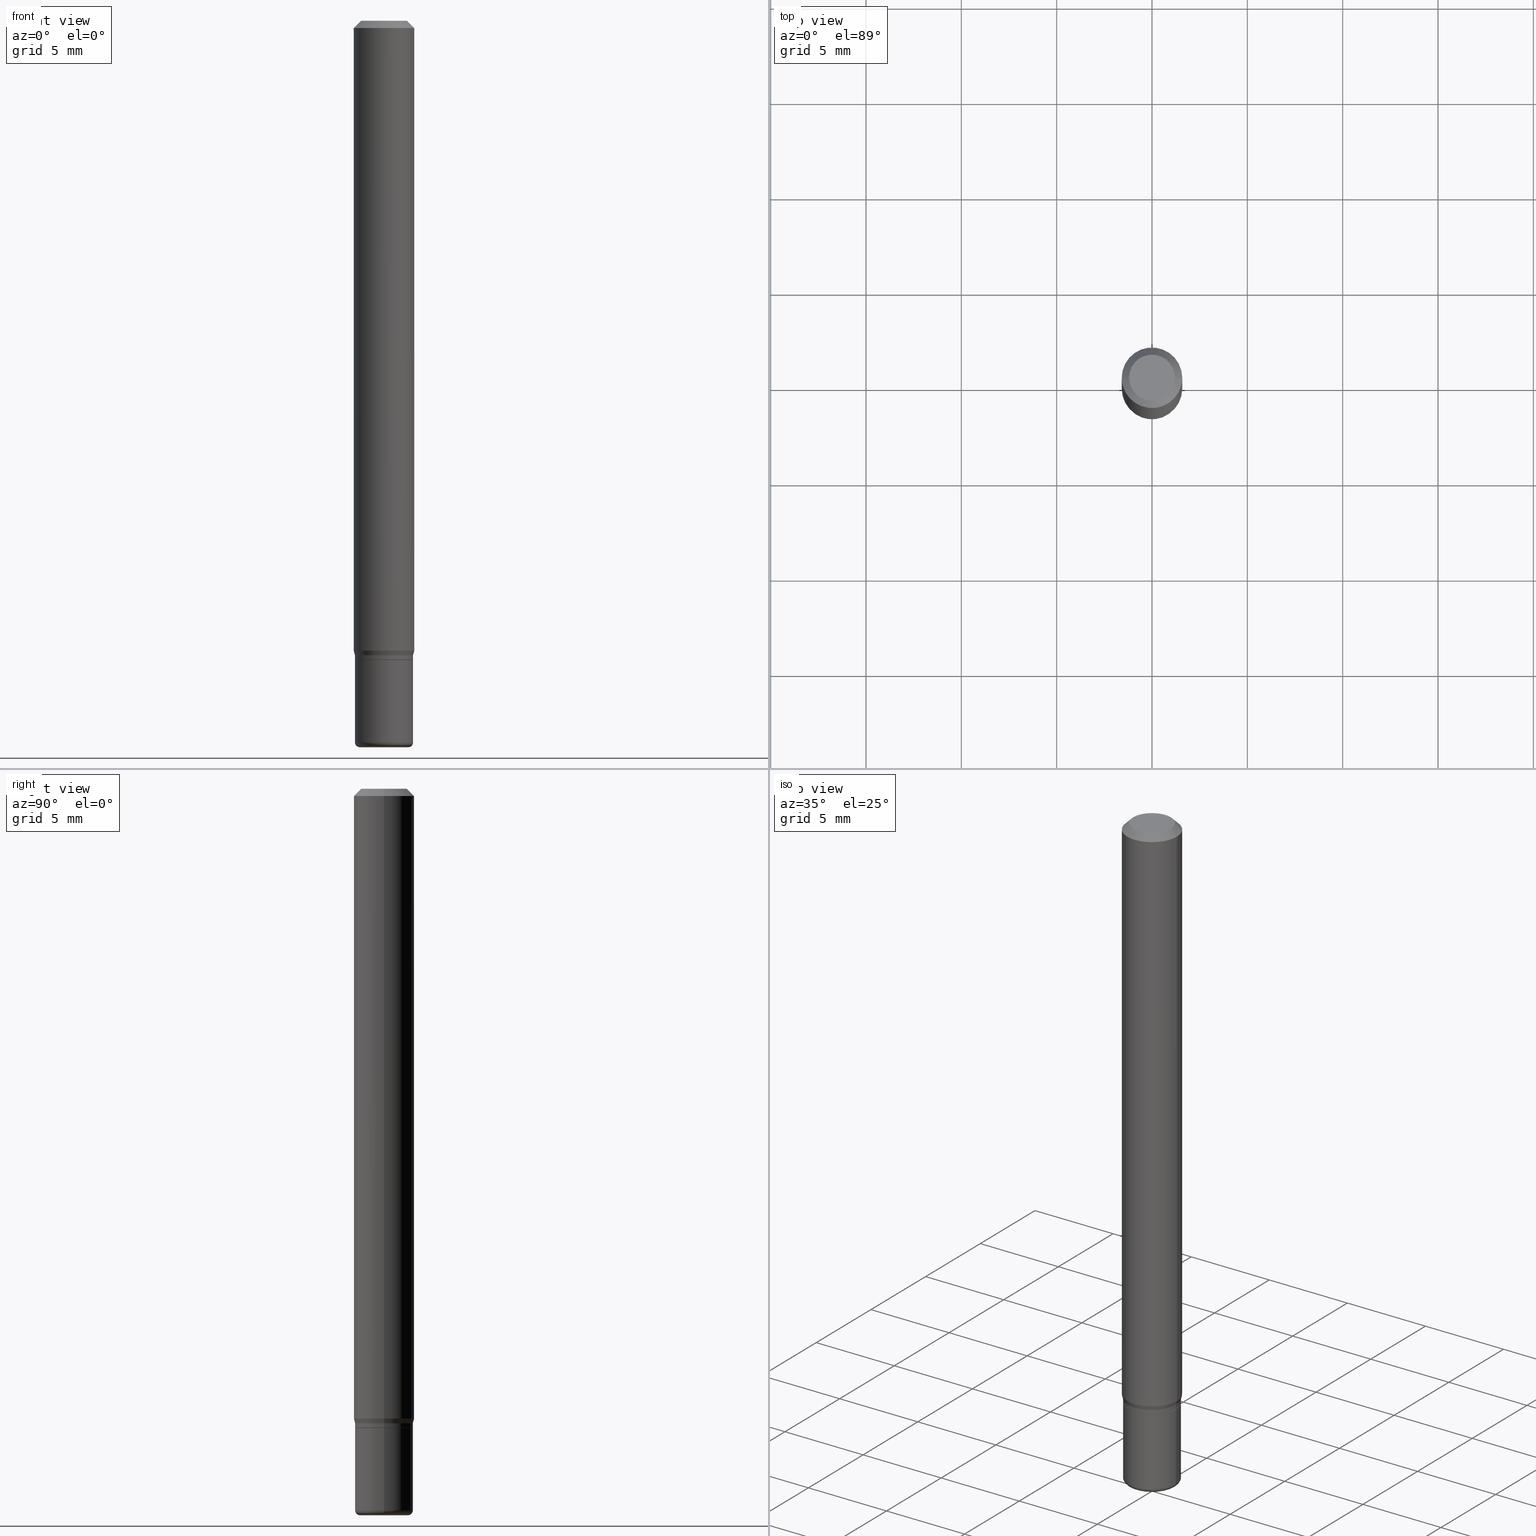
[diagram: canonical four-view strip — front | top / right | iso, engineering-drawing reading convention]
A machine part, canonical four-view strip (front | top / right | iso — engineering-drawing reading convention). The complete STEP part file that produces these views, byte-faithful:
ISO-10303-21;
HEADER;
FILE_DESCRIPTION (( 'STEP AP203' ),
    '1' );
FILE_NAME ('08633.STEP',
    '2024-02-29T20:05:15',
    ( '' ),
    ( '' ),
    'SwSTEP 2.0',
    'SolidWorks 2023',
    '' );
FILE_SCHEMA (( 'CONFIG_CONTROL_DESIGN' ));
ENDSEC;

DATA;
#1 = EDGE_CURVE ( 'NONE', #241, #350, #5, .T. ) ;
#2 = LINE ( 'NONE', #336, #425 ) ;
#3 = ORIENTED_EDGE ( 'NONE', *, *, #418, .F. ) ;
#4 = CARTESIAN_POINT ( 'NONE',  ( -0.05949999999999997652, -4.185982439495692846E-15, -1.320000000000000062 ) ) ;
#5 = LINE ( 'NONE', #329, #110 ) ;
#6 = DIRECTION ( 'NONE',  ( -2.445468806185136877E-29, 3.491481338843145188E-15, 1.000000000000000000 ) ) ;
#7 = CONICAL_SURFACE ( 'NONE', #157, 0.06250000000000000000, 0.7853981633974488341 ) ;
#8 = ADVANCED_FACE ( 'NONE', ( #10 ), #166, .T. ) ;
#9 = AXIS2_PLACEMENT_3D ( 'NONE', #221, #65, #228 ) ;
#10 = FACE_OUTER_BOUND ( 'NONE', #127, .T. ) ;
#11 = COORDINATED_UNIVERSAL_TIME_OFFSET ( 5, 0, .BEHIND. ) ;
#12 = DIRECTION ( 'NONE',  ( 1.000000000000000000, -6.982962677686265922E-15, 4.876176775795935793E-29 ) ) ;
#13 = ORIENTED_EDGE ( 'NONE', *, *, #207, .F. ) ;
#14 = PRODUCT_RELATED_PRODUCT_CATEGORY ( 'detail', '', ( #305 ) ) ;
#15 = DIRECTION ( 'NONE',  ( -2.445468806185136877E-29, 3.491481338843145188E-15, 1.000000000000000000 ) ) ;
#16 = DIRECTION ( 'NONE',  ( 1.000000000000000000, -6.982962677686262766E-15, 0.000000000000000000 ) ) ;
#17 = CYLINDRICAL_SURFACE ( 'NONE', #38, 0.05999999999999998390 ) ;
#18 = AXIS2_PLACEMENT_3D ( 'NONE', #459, #342, #148 ) ;
#19 = CARTESIAN_POINT ( 'NONE',  ( 0.000000000000000000, 0.000000000000000000, 0.000000000000000000 ) ) ;
#20 = AXIS2_PLACEMENT_3D ( 'NONE', #375, #414, #343 ) ;
#21 = CARTESIAN_POINT ( 'NONE',  ( 0.000000000000000000, 0.000000000000000000, 0.000000000000000000 ) ) ;
#22 = CARTESIAN_POINT ( 'NONE',  ( 3.180747601520009606E-29, -4.541264589508918231E-15, -1.300669872981077946 ) ) ;
#23 = PERSON_AND_ORGANIZATION ( #239, #264 ) ;
#24 = CARTESIAN_POINT ( 'NONE',  ( 0.04999999999999999584, -5.551455328760601441E-15, -1.490000000000000213 ) ) ;
#25 = DIRECTION ( 'NONE',  ( 1.000000000000000000, -6.982962677686275388E-15, 0.000000000000000000 ) ) ;
#26 = CARTESIAN_POINT ( 'NONE',  ( -0.06250000000000000000, -4.097175379658855615E-15, -1.300669872981077946 ) ) ;
#27 = PERSON_AND_ORGANIZATION ( #239, #264 ) ;
#28 = CLOSED_SHELL ( 'NONE', ( #310, #8, #60, #290, #252, #40, #267, #318, #90, #172, #50, #35 ) ) ;
#29 = DIRECTION ( 'NONE',  ( 1.000000000000000000, -6.982962677686269077E-15, 0.000000000000000000 ) ) ;
#30 = EDGE_CURVE ( 'NONE', #394, #158, #232, .T. ) ;
#31 = EDGE_LOOP ( 'NONE', ( #254, #488, #483, #409 ) ) ;
#32 = APPROVAL ( #88, 'UNSPECIFIED' ) ;
#33 = CARTESIAN_POINT ( 'NONE',  ( -0.05949999999999997652, -4.183333212321581645E-15, -1.320000000000000062 ) ) ;
#34 = ORIENTED_EDGE ( 'NONE', *, *, #69, .F. ) ;
#35 = ADVANCED_FACE ( 'NONE', ( #174 ), #502, .T. ) ;
#36 = APPROVAL_DATE_TIME ( #389, #429 ) ;
#37 = EDGE_LOOP ( 'NONE', ( #506, #132, #125, #234 ) ) ;
#38 = AXIS2_PLACEMENT_3D ( 'NONE', #21, #108, #178 ) ;
#39 = DATE_TIME_ROLE ( 'creation_date' ) ;
#40 = ADVANCED_FACE ( 'NONE', ( #146 ), #370, .T. ) ;
#41 = SECURITY_CLASSIFICATION_LEVEL ( 'unclassified' ) ;
#42 = EDGE_LOOP ( 'NONE', ( #168, #399, #278, #209 ) ) ;
#43 = LENGTH_MEASURE_WITH_UNIT ( LENGTH_MEASURE( 0.02539999999999999897 ), #357 );
#44 = ORIENTED_EDGE ( 'NONE', *, *, #255, .T. ) ;
#45 = CIRCLE ( 'NONE', #18, 0.05949999999999997652 ) ;
#46 = VECTOR ( 'NONE', #484, 39.37007874015748143 ) ;
#47 = ORIENTED_EDGE ( 'NONE', *, *, #405, .F. ) ;
#48 = LINE ( 'NONE', #4, #46 ) ;
#49 = ORIENTED_EDGE ( 'NONE', *, *, #86, .T. ) ;
#50 = ADVANCED_FACE ( 'NONE', ( #179 ), #308, .T. ) ;
#51 = CARTESIAN_POINT ( 'NONE',  ( 3.643748521215853910E-29, -5.202307194876288105E-15, -1.490000000000000213 ) ) ;
#52 = ORIENTED_EDGE ( 'NONE', *, *, #189, .T. ) ;
#53 = DIRECTION ( 'NONE',  ( -2.445468806185136597E-29, 3.491481338843145583E-15, 1.000000000000000000 ) ) ;
#54 = CC_DESIGN_PERSON_AND_ORGANIZATION_ASSIGNMENT ( #82, #152, ( #101 ) ) ;
#55 = VERTEX_POINT ( 'NONE', #382 ) ;
#56 = DIRECTION ( 'NONE',  ( -2.438088387897960049E-29, 3.491481338843145188E-15, 1.000000000000000000 ) ) ;
#57 = CARTESIAN_POINT ( 'NONE',  ( 3.668203209277632395E-31, -5.237222008264614861E-17, -0.01499999999999970281 ) ) ;
#58 = DIRECTION ( 'NONE',  ( -2.445468806185136877E-29, 3.491481338843145188E-15, 1.000000000000000000 ) ) ;
#59 = FACE_OUTER_BOUND ( 'NONE', #242, .T. ) ;
#60 = ADVANCED_FACE ( 'NONE', ( #59 ), #297, .T. ) ;
#61 = DIRECTION ( 'NONE',  ( 1.000000000000000000, -6.982962677686275388E-15, 0.000000000000000000 ) ) ;
#62 = VECTOR ( 'NONE', #133, 39.37007874015748143 ) ;
#63 = FACE_OUTER_BOUND ( 'NONE', #197, .T. ) ;
#64 = CARTESIAN_POINT ( 'NONE',  ( 0.000000000000000000, 0.000000000000000000, 0.000000000000000000 ) ) ;
#65 = DIRECTION ( 'NONE',  ( -2.445468806185136597E-29, 3.491481338843145583E-15, 1.000000000000000000 ) ) ;
#66 = DIMENSIONAL_EXPONENTS ( 1.000000000000000000, 0.000000000000000000, 0.000000000000000000, 0.000000000000000000, 0.000000000000000000, 0.000000000000000000, 0.000000000000000000 ) ;
#67 = CARTESIAN_POINT ( 'NONE',  ( -0.05999999999999997696, 4.263256414560599478E-16, -2.951361054152942362E-30 ) ) ;
#68 = CARTESIAN_POINT ( 'NONE',  ( 0.06250000000000000000, -4.888073874380378612E-16, -0.01499999999999970281 ) ) ;
#69 = EDGE_CURVE ( 'NONE', #477, #469, #319, .T. ) ;
#70 = AXIS2_PLACEMENT_3D ( 'NONE', #307, #112, #61 ) ;
#71 = LOCAL_TIME ( 15, 5, 15.00000000000000000, #275 ) ;
#72 = ORIENTED_EDGE ( 'NONE', *, *, #222, .T. ) ;
#73 = CIRCLE ( 'NONE', #361, 0.04999999999999999584 ) ;
#74 = CIRCLE ( 'NONE', #515, 0.05949999999999997652 ) ;
#75 = DIRECTION ( 'NONE',  ( -1.000000000000000000, 7.105427357600958471E-15, 0.000000000000000000 ) ) ;
#76 = EDGE_CURVE ( 'NONE', #332, #445, #279, .T. ) ;
#77 = ORIENTED_EDGE ( 'NONE', *, *, #126, .T. ) ;
#78 = APPROVAL_ROLE ( '' ) ;
#79 = ORIENTED_EDGE ( 'NONE', *, *, #222, .F. ) ;
#80 = DIRECTION ( 'NONE',  ( 1.000000000000000000, -6.982962677686273810E-15, 4.883557194083115143E-29 ) ) ;
#81 = EDGE_LOOP ( 'NONE', ( #156, #407, #369, #79 ) ) ;
#82 = PERSON_AND_ORGANIZATION ( #239, #264 ) ;
#83 = APPLICATION_PROTOCOL_DEFINITION ( 'international standard', 'config_control_design', 1994, #218 ) ;
#84 = AXIS2_PLACEMENT_3D ( 'NONE', #373, #141, #135 ) ;
#85 = DIRECTION ( 'NONE',  ( -1.000000000000000000, 6.982962677686265922E-15, -4.876176775795935793E-29 ) ) ;
#86 = EDGE_CURVE ( 'NONE', #476, #87, #73, .T. ) ;
#87 = VERTEX_POINT ( 'NONE', #455 ) ;
#88 = APPROVAL_STATUS ( 'not_yet_approved' ) ;
#89 = CARTESIAN_POINT ( 'NONE',  ( -6.680649051745406845E-45, 9.538196290434862081E-31, 2.731847993664263218E-16 ) ) ;
#90 = ADVANCED_FACE ( 'NONE', ( #63 ), #107, .F. ) ;
#91 = ORIENTED_EDGE ( 'NONE', *, *, #384, .T. ) ;
#92 = CIRCLE ( 'NONE', #175, 0.05999999999999997696 ) ;
#93 = CYLINDRICAL_SURFACE ( 'NONE', #193, 0.06250000000000000000 ) ;
#94 = AXIS2_PLACEMENT_3D ( 'NONE', #51, #411, #215 ) ;
#95 = EDGE_LOOP ( 'NONE', ( #355, #440, #34, #100 ) ) ;
#96 = CARTESIAN_POINT ( 'NONE',  ( 0.000000000000000000, 0.000000000000000000, 0.000000000000000000 ) ) ;
#97 = DIRECTION ( 'NONE',  ( -2.445468806185136877E-29, 3.491481338843145188E-15, 1.000000000000000000 ) ) ;
#98 = ADVANCED_FACE ( 'NONE', ( #261 ), #427, .T. ) ;
#99 = DIRECTION ( 'NONE',  ( -2.438088387897960049E-29, 3.491481338843145188E-15, 1.000000000000000000 ) ) ;
#100 = ORIENTED_EDGE ( 'NONE', *, *, #126, .F. ) ;
#101 = PRODUCT_DEFINITION_FORMATION_WITH_SPECIFIED_SOURCE ( 'ANY', '', #305, .NOT_KNOWN. ) ;
#102 = DIRECTION ( 'NONE',  ( 1.000000000000000000, -6.982962677686269077E-15, 0.000000000000000000 ) ) ;
#103 = DIRECTION ( 'NONE',  ( 1.000000000000000000, -6.982962677686266711E-15, 0.000000000000000000 ) ) ;
#104 = ADVANCED_FACE ( 'NONE', ( #259 ), #379, .T. ) ;
#105 = DIRECTION ( 'NONE',  ( 2.438088387897960049E-29, -3.491481338843145188E-15, -1.000000000000000000 ) ) ;
#106 = DIRECTION ( 'NONE',  ( 1.000000000000000000, -6.982962677686270655E-15, 0.000000000000000000 ) ) ;
#107 = PLANE ( 'NONE',  #138 ) ;
#108 = DIRECTION ( 'NONE',  ( -2.445468806185136597E-29, 3.491481338843145583E-15, 1.000000000000000000 ) ) ;
#109 = FACE_OUTER_BOUND ( 'NONE', #117, .T. ) ;
#110 = VECTOR ( 'NONE', #97, 39.37007874015748143 ) ;
#111 = EDGE_CURVE ( 'NONE', #201, #241, #494, .T. ) ;
#112 = DIRECTION ( 'NONE',  ( -2.445468806185136597E-29, 3.491481338843145583E-15, 1.000000000000000000 ) ) ;
#113 = APPROVAL ( #312, 'UNSPECIFIED' ) ;
#114 = DIRECTION ( 'NONE',  ( -2.445468806185136597E-29, 3.491481338843145583E-15, 1.000000000000000000 ) ) ;
#115 = CARTESIAN_POINT ( 'NONE',  ( -0.04999999999999999584, -4.847035826996237697E-15, -1.490000000000000213 ) ) ;
#116 = AXIS2_PLACEMENT_3D ( 'NONE', #374, #140, #381 ) ;
#117 = EDGE_LOOP ( 'NONE', ( #251, #327 ) ) ;
#118 = AXIS2_PLACEMENT_3D ( 'NONE', #470, #387, #85 ) ;
#119 = PERSON_AND_ORGANIZATION ( #239, #264 ) ;
#120 = ORIENTED_EDGE ( 'NONE', *, *, #69, .T. ) ;
#121 =( NAMED_UNIT ( * ) SI_UNIT ( $, .STERADIAN. ) SOLID_ANGLE_UNIT ( ) );
#122 = DATE_AND_TIME ( #432, #475 ) ;
#123 = ADVANCED_FACE ( 'NONE', ( #109 ), #347, .F. ) ;
#124 = PERSON_AND_ORGANIZATION_ROLE ( 'creator' ) ;
#125 = ORIENTED_EDGE ( 'NONE', *, *, #154, .T. ) ;
#126 = EDGE_CURVE ( 'NONE', #403, #477, #402, .T. ) ;
#127 = EDGE_LOOP ( 'NONE', ( #282, #274, #284, #214 ) ) ;
#128 = CARTESIAN_POINT ( 'NONE',  ( 0.05999999999999997696, -5.025987387264705990E-15, -1.319499999999999895 ) ) ;
#129 = ORIENTED_EDGE ( 'NONE', *, *, #449, .F. ) ;
#130 = CIRCLE ( 'NONE', #94, 0.05999999999999994921 ) ;
#131 = DIRECTION ( 'NONE',  ( -2.445468806185136597E-29, 3.491481338843145583E-15, 1.000000000000000000 ) ) ;
#132 = ORIENTED_EDGE ( 'NONE', *, *, #405, .T. ) ;
#133 = DIRECTION ( 'NONE',  ( 0.7071067811864267805, -2.468850131080992517E-15, 0.7071067811866682540 ) ) ;
#134 = ORIENTED_EDGE ( 'NONE', *, *, #486, .T. ) ;
#135 = DIRECTION ( 'NONE',  ( 1.000000000000000000, -6.982962677686261977E-15, 0.000000000000000000 ) ) ;
#136 = AXIS2_PLACEMENT_3D ( 'NONE', #266, #183, #385 ) ;
#137 = LINE ( 'NONE', #481, #417 ) ;
#138 = AXIS2_PLACEMENT_3D ( 'NONE', #338, #105, #497 ) ;
#139 = DIRECTION ( 'NONE',  ( -2.445468806185136597E-29, 3.491481338843145583E-15, 1.000000000000000000 ) ) ;
#140 = DIRECTION ( 'NONE',  ( -2.445468806185136597E-29, 3.491481338843145583E-15, 1.000000000000000000 ) ) ;
#141 = DIRECTION ( 'NONE',  ( -2.445468806185136597E-29, 3.491481338843145583E-15, 1.000000000000000000 ) ) ;
#142 = LINE ( 'NONE', #257, #517 ) ;
#143 = DIRECTION ( 'NONE',  ( -2.445468806185136597E-29, 3.491481338843145583E-15, 1.000000000000000000 ) ) ;
#144 = DIRECTION ( 'NONE',  ( -2.445468806185136597E-29, 3.491481338843145583E-15, 1.000000000000000000 ) ) ;
#145 = MANIFOLD_SOLID_BREP ( 'Body-Move/Copy2[2]', #28 ) ;
#146 = FACE_OUTER_BOUND ( 'NONE', #161, .T. ) ;
#147 = PRODUCT_DEFINITION ( 'UNKNOWN', '', #101, #337 ) ;
#148 = DIRECTION ( 'NONE',  ( 1.000000000000000000, -6.982962677686261977E-15, 0.000000000000000000 ) ) ;
#149 = DATE_TIME_ROLE ( 'classification_date' ) ;
#150 = DIRECTION ( 'NONE',  ( -0.2588190451025168537, 5.211531920934521854E-15, 0.9659258262890693114 ) ) ;
#151 = ORIENTED_EDGE ( 'NONE', *, *, #296, .F. ) ;
#152 = PERSON_AND_ORGANIZATION_ROLE ( 'design_supplier' ) ;
#153 = CIRCLE ( 'NONE', #510, 0.009999999999999953371 ) ;
#154 = EDGE_CURVE ( 'NONE', #191, #201, #334, .T. ) ;
#155 = CARTESIAN_POINT ( 'NONE',  ( -0.06250000000000000000, -1.852729194945719447E-15, -0.01499999999999970281 ) ) ;
#156 = ORIENTED_EDGE ( 'NONE', *, *, #76, .T. ) ;
#157 = AXIS2_PLACEMENT_3D ( 'NONE', #311, #464, #415 ) ;
#158 = VERTEX_POINT ( 'NONE', #444 ) ;
#159 = EDGE_CURVE ( 'NONE', #403, #55, #130, .T. ) ;
#160 = FACE_OUTER_BOUND ( 'NONE', #236, .T. ) ;
#161 = EDGE_LOOP ( 'NONE', ( #129, #448, #134, #509 ) ) ;
#162 = FACE_OUTER_BOUND ( 'NONE', #81, .T. ) ;
#163 = ORIENTED_EDGE ( 'NONE', *, *, #258, .T. ) ;
#164 = AXIS2_PLACEMENT_3D ( 'NONE', #447, #99, #12 ) ;
#165 = CC_DESIGN_SECURITY_CLASSIFICATION ( #277, ( #101 ) ) ;
#166 = CONICAL_SURFACE ( 'NONE', #84, 0.05949999999999997652, 0.7853981633972775267 ) ;
#167 = DIRECTION ( 'NONE',  ( 1.000000000000000000, -6.982962677686266711E-15, 4.852736867747365086E-29 ) ) ;
#168 = ORIENTED_EDGE ( 'NONE', *, *, #189, .F. ) ;
#169 = APPLICATION_CONTEXT ( 'configuration controlled 3d designs of mechanical parts and assemblies' ) ;
#170 = DIRECTION ( 'NONE',  ( 1.000000000000000000, -6.982962677686269077E-15, 0.000000000000000000 ) ) ;
#171 = ORIENTED_EDGE ( 'NONE', *, *, #396, .F. ) ;
#172 = ADVANCED_FACE ( 'NONE', ( #328 ), #299, .F. ) ;
#173 = CARTESIAN_POINT ( 'NONE',  ( 3.582686580359766038E-29, -5.359686688179453325E-15, -1.500000000000000222 ) ) ;
#174 = FACE_OUTER_BOUND ( 'NONE', #194, .T. ) ;
#175 = AXIS2_PLACEMENT_3D ( 'NONE', #456, #501, #106 ) ;
#176 = CARTESIAN_POINT ( 'NONE',  ( -0.05999999999999999084, -4.122345146043658745E-15, -1.310000000000000275 ) ) ;
#177 = DIRECTION ( 'NONE',  ( 1.000000000000000000, -6.982962677686268288E-15, 0.000000000000000000 ) ) ;
#178 = DIRECTION ( 'NONE',  ( 1.000000000000000000, -6.982962677686266711E-15, 4.876176775795935793E-29 ) ) ;
#179 = FACE_OUTER_BOUND ( 'NONE', #37, .T. ) ;
#180 = PERSON_AND_ORGANIZATION_ROLE ( 'creator' ) ;
#181 = DIRECTION ( 'NONE',  ( -6.982962677686266711E-15, -1.000000000000000000, 3.491481338843145583E-15 ) ) ;
#182 = CARTESIAN_POINT ( 'NONE',  ( 3.226796089761287641E-29, -4.607009626603530145E-15, -1.319499999999999895 ) ) ;
#183 = DIRECTION ( 'NONE',  ( -2.445468806185136597E-29, 3.491481338843145583E-15, 1.000000000000000000 ) ) ;
#184 = LOCAL_TIME ( 15, 5, 15.00000000000000000, #11 ) ;
#185 = AXIS2_PLACEMENT_3D ( 'NONE', #22, #216, #16 ) ;
#186 = APPROVAL_ROLE ( '' ) ;
#187 = FACE_OUTER_BOUND ( 'NONE', #291, .T. ) ;
#188 = ORIENTED_EDGE ( 'NONE', *, *, #380, .F. ) ;
#189 = EDGE_CURVE ( 'NONE', #158, #436, #2, .T. ) ;
#190 = DIRECTION ( 'NONE',  ( -2.445468806185136597E-29, 3.491481338843145583E-15, 1.000000000000000000 ) ) ;
#191 = VERTEX_POINT ( 'NONE', #491 ) ;
#192 = MECHANICAL_CONTEXT ( 'NONE', #169, 'mechanical' ) ;
#193 = AXIS2_PLACEMENT_3D ( 'NONE', #248, #450, #331 ) ;
#194 = EDGE_LOOP ( 'NONE', ( #286, #485, #91, #171 ) ) ;
#195 = CLOSED_SHELL ( 'NONE', ( #489, #104, #512, #422, #98, #123 ) ) ;
#196 = PERSON_AND_ORGANIZATION ( #239, #264 ) ;
#197 = EDGE_LOOP ( 'NONE', ( #249, #44 ) ) ;
#198 = PERSON_AND_ORGANIZATION ( #239, #264 ) ;
#199 = CC_DESIGN_PERSON_AND_ORGANIZATION_ASSIGNMENT ( #474, #124, ( #147 ) ) ;
#200 = CARTESIAN_POINT ( 'NONE',  ( 0.04999999999999999584, -5.586370142149032301E-15, -1.500000000000000222 ) ) ;
#201 = VERTEX_POINT ( 'NONE', #128 ) ;
#202 = CIRCLE ( 'NONE', #70, 0.04999999999999999584 ) ;
#203 = LOCAL_TIME ( 15, 5, 15.00000000000000000, #433 ) ;
#204 = CIRCLE ( 'NONE', #392, 0.05999999999999994921 ) ;
#205 = DIRECTION ( 'NONE',  ( -2.445468806185136877E-29, 3.491481338843145188E-15, 1.000000000000000000 ) ) ;
#206 = ORIENTED_EDGE ( 'NONE', *, *, #255, .F. ) ;
#207 = EDGE_CURVE ( 'NONE', #445, #513, #137, .T. ) ;
#208 = DIRECTION ( 'NONE',  ( 0.7071067811865479058, -7.319954787623257623E-15, -0.7071067811865471286 ) ) ;
#209 = ORIENTED_EDGE ( 'NONE', *, *, #296, .T. ) ;
#210 = DIRECTION ( 'NONE',  ( 1.000000000000000000, -6.982962677686273810E-15, 0.000000000000000000 ) ) ;
#211 = ORIENTED_EDGE ( 'NONE', *, *, #313, .T. ) ;
#212 = AXIS2_PLACEMENT_3D ( 'NONE', #57, #493, #302 ) ;
#213 = CARTESIAN_POINT ( 'NONE',  ( 0.06250000000000000000, -4.364351673553916694E-16, 3.047610484872459871E-30 ) ) ;
#214 = ORIENTED_EDGE ( 'NONE', *, *, #154, .F. ) ;
#215 = DIRECTION ( 'NONE',  ( 1.000000000000000000, -6.982962677686273810E-15, 0.000000000000000000 ) ) ;
#216 = DIRECTION ( 'NONE',  ( -2.445468806185136597E-29, 3.491481338843145583E-15, 1.000000000000000000 ) ) ;
#217 = EDGE_CURVE ( 'NONE', #55, #403, #204, .T. ) ;
#218 = APPLICATION_CONTEXT ( 'configuration controlled 3d designs of mechanical parts and assemblies' ) ;
#219 = DATE_AND_TIME ( #365, #184 ) ;
#220 = CARTESIAN_POINT ( 'NONE',  ( -0.04750000000000000749, 3.578768372314221353E-16, 2.731847993664239060E-16 ) ) ;
#221 = CARTESIAN_POINT ( 'NONE',  ( 0.000000000000000000, 0.000000000000000000, 0.000000000000000000 ) ) ;
#222 = EDGE_CURVE ( 'NONE', #332, #436, #253, .T. ) ;
#223 = AXIS2_PLACEMENT_3D ( 'NONE', #96, #53, #250 ) ;
#224 = CARTESIAN_POINT ( 'NONE',  ( 3.668203209277632395E-31, -5.237222008264614861E-17, -0.01499999999999970281 ) ) ;
#225 = CC_DESIGN_APPROVAL ( #32, ( #101 ) ) ;
#226 = CARTESIAN_POINT ( 'NONE',  ( 3.228018824164380442E-29, -4.608755367272952437E-15, -1.320000000000000062 ) ) ;
#227 = DIRECTION ( 'NONE',  ( -2.445468806185136597E-29, 3.491481338843145583E-15, 1.000000000000000000 ) ) ;
#228 = DIRECTION ( 'NONE',  ( 1.000000000000000000, -6.982962677686266711E-15, 4.876176775795935793E-29 ) ) ;
#229 = CARTESIAN_POINT ( 'NONE',  ( 0.06250000000000000000, -4.977699756864309111E-15, -1.300669872981077946 ) ) ;
#230 = DIRECTION ( 'NONE',  ( -2.445468806185136597E-29, 3.491481338843145583E-15, 1.000000000000000000 ) ) ;
#231 = VECTOR ( 'NONE', #58, 39.37007874015748143 ) ;
#232 = CIRCLE ( 'NONE', #386, 0.04750000000000000749 ) ;
#233 = FACE_OUTER_BOUND ( 'NONE', #397, .T. ) ;
#234 = ORIENTED_EDGE ( 'NONE', *, *, #471, .F. ) ;
#235 = CALENDAR_DATE ( 2024, 29, 2 ) ;
#236 = EDGE_LOOP ( 'NONE', ( #367, #372, #443, #321 ) ) ;
#237 = COORDINATED_UNIVERSAL_TIME_OFFSET ( 5, 0, .BEHIND. ) ;
#238 = CIRCLE ( 'NONE', #306, 0.06250000000000000000 ) ;
#239 = PERSON ( 'UNSPECIFIED', 'UNSPECIFIED', 'UNSPECIFIED', ('UNSPECIFIED'), ('UNSPECIFIED'), ('UNSPECIFIED') ) ;
#240 = CC_DESIGN_PERSON_AND_ORGANIZATION_ASSIGNMENT ( #198, #467, ( #305 ) ) ;
#241 = VERTEX_POINT ( 'NONE', #285 ) ;
#242 = EDGE_LOOP ( 'NONE', ( #206, #52, #163, #273 ) ) ;
#243 = CARTESIAN_POINT ( 'NONE',  ( 3.668203209277632395E-31, -5.237222008264614861E-17, -0.01499999999999970281 ) ) ;
#244 = ORIENTED_EDGE ( 'NONE', *, *, #462, .T. ) ;
#245 = CIRCLE ( 'NONE', #136, 0.05999999999999999778 ) ;
#246 = VECTOR ( 'NONE', #15, 39.37007874015748143 ) ;
#247 =( GEOMETRIC_REPRESENTATION_CONTEXT ( 3 ) GLOBAL_UNCERTAINTY_ASSIGNED_CONTEXT ( ( #454 ) ) GLOBAL_UNIT_ASSIGNED_CONTEXT ( ( #359, #322, #121 ) ) REPRESENTATION_CONTEXT ( 'NONE', 'WORKASPACE' ) );
#248 = CARTESIAN_POINT ( 'NONE',  ( 0.000000000000000000, 0.000000000000000000, 0.000000000000000000 ) ) ;
#249 = ORIENTED_EDGE ( 'NONE', *, *, #30, .T. ) ;
#250 = DIRECTION ( 'NONE',  ( 1.000000000000000000, -6.982962677686266711E-15, 4.876176775795935793E-29 ) ) ;
#251 = ORIENTED_EDGE ( 'NONE', *, *, #86, .F. ) ;
#252 = ADVANCED_FACE ( 'NONE', ( #160 ), #287, .T. ) ;
#253 = LINE ( 'NONE', #213, #377 ) ;
#254 = ORIENTED_EDGE ( 'NONE', *, *, #111, .T. ) ;
#255 = EDGE_CURVE ( 'NONE', #158, #394, #461, .T. ) ;
#256 = CARTESIAN_POINT ( 'NONE',  ( -6.680649051745406845E-45, 9.538196290434862081E-31, 2.731847993664263218E-16 ) ) ;
#257 = CARTESIAN_POINT ( 'NONE',  ( 0.05999999999999998390, -4.189777606611758942E-16, 2.925706065477560705E-30 ) ) ;
#258 = EDGE_CURVE ( 'NONE', #436, #513, #270, .T. ) ;
#259 = FACE_OUTER_BOUND ( 'NONE', #95, .T. ) ;
#260 = CARTESIAN_POINT ( 'NONE',  ( 3.203564136102529457E-29, -4.573840553884521577E-15, -1.310000000000000275 ) ) ;
#261 = FACE_OUTER_BOUND ( 'NONE', #439, .T. ) ;
#262 = AXIS2_PLACEMENT_3D ( 'NONE', #224, #144, #103 ) ;
#263 = DIRECTION ( 'NONE',  ( 1.000000000000000000, -6.982962677686262766E-15, 0.000000000000000000 ) ) ;
#264 = ORGANIZATION ( 'UNSPECIFIED', 'UNSPECIFIED', '' ) ;
#265 = DIRECTION ( 'NONE',  ( 1.000000000000000000, -6.982962677686266711E-15, 4.852736867747365086E-29 ) ) ;
#266 = CARTESIAN_POINT ( 'NONE',  ( 3.228018824164380442E-29, -4.608755367272952437E-15, -1.320000000000000062 ) ) ;
#267 = ADVANCED_FACE ( 'NONE', ( #293 ), #93, .T. ) ;
#268 = DIRECTION ( 'NONE',  ( 1.000000000000000000, -6.982962677686261977E-15, 0.000000000000000000 ) ) ;
#269 = CARTESIAN_POINT ( 'NONE',  ( 0.05999999999999999778, -5.027733127934128282E-15, -1.320000000000000062 ) ) ;
#270 = CIRCLE ( 'NONE', #272, 0.06250000000000000000 ) ;
#271 = AXIS2_PLACEMENT_3D ( 'NONE', #19, #143, #458 ) ;
#272 = AXIS2_PLACEMENT_3D ( 'NONE', #243, #406, #441 ) ;
#273 = ORIENTED_EDGE ( 'NONE', *, *, #292, .F. ) ;
#274 = ORIENTED_EDGE ( 'NONE', *, *, #283, .T. ) ;
#275 = COORDINATED_UNIVERSAL_TIME_OFFSET ( 5, 0, .BEHIND. ) ;
#276 = APPROVAL_DATE_TIME ( #465, #113 ) ;
#277 = SECURITY_CLASSIFICATION ( '', '', #41 ) ;
#278 = ORIENTED_EDGE ( 'NONE', *, *, #292, .T. ) ;
#279 = CIRCLE ( 'NONE', #185, 0.06250000000000000000 ) ;
#280 = PERSON_AND_ORGANIZATION ( #239, #264 ) ;
#281 = DATE_AND_TIME ( #391, #452 ) ;
#282 = ORIENTED_EDGE ( 'NONE', *, *, #418, .T. ) ;
#283 = EDGE_CURVE ( 'NONE', #514, #241, #48, .T. ) ;
#284 = ORIENTED_EDGE ( 'NONE', *, *, #111, .F. ) ;
#285 = CARTESIAN_POINT ( 'NONE',  ( -0.05999999999999997696, -4.180683985147470444E-15, -1.319499999999999895 ) ) ;
#286 = ORIENTED_EDGE ( 'NONE', *, *, #1, .F. ) ;
#287 = CONICAL_SURFACE ( 'NONE', #330, 0.05999999999999999084, 0.2617993877991454110 ) ;
#288 = CYLINDRICAL_SURFACE ( 'NONE', #223, 0.06250000000000000000 ) ;
#289 = ORIENTED_EDGE ( 'NONE', *, *, #217, .T. ) ;
#290 = ADVANCED_FACE ( 'NONE', ( #162 ), #288, .T. ) ;
#291 = EDGE_LOOP ( 'NONE', ( #188, #289, #77, #430 ) ) ;
#292 = EDGE_CURVE ( 'NONE', #394, #513, #378, .T. ) ;
#293 = FACE_OUTER_BOUND ( 'NONE', #362, .T. ) ;
#294 = DIRECTION ( 'NONE',  ( -2.445468806185136597E-29, 3.491481338843145583E-15, 1.000000000000000000 ) ) ;
#295 = AXIS2_PLACEMENT_3D ( 'NONE', #64, #227, #383 ) ;
#296 = EDGE_CURVE ( 'NONE', #513, #436, #354, .T. ) ;
#297 = CONICAL_SURFACE ( 'NONE', #212, 0.06250000000000000000, 0.7853981633974488341 ) ;
#298 = CIRCLE ( 'NONE', #492, 0.05999999999999999084 ) ;
#299 = PLANE ( 'NONE',  #164 ) ;
#300 = CARTESIAN_POINT ( 'NONE',  ( 3.668203209277704895E-29, -5.237222008264718177E-15, -1.500000000000000222 ) ) ;
#301 = CARTESIAN_POINT ( 'NONE',  ( -0.05999999999999999778, -4.479205639618560964E-15, -1.320000000000000062 ) ) ;
#302 = DIRECTION ( 'NONE',  ( -1.000000000000000000, 6.982962677686266711E-15, 0.000000000000000000 ) ) ;
#303 = CARTESIAN_POINT ( 'NONE',  ( 0.05999999999999994921, -5.621284955537463950E-15, -1.490000000000000213 ) ) ;
#304 = DIRECTION ( 'NONE',  ( -2.445468806185136597E-29, 3.491481338843145583E-15, 1.000000000000000000 ) ) ;
#305 = PRODUCT ( '08633', '08633', '', ( #192 ) ) ;
#306 = AXIS2_PLACEMENT_3D ( 'NONE', #344, #230, #263 ) ;
#307 = CARTESIAN_POINT ( 'NONE',  ( 3.668203209277704895E-29, -5.237222008264718177E-15, -1.500000000000000222 ) ) ;
#308 = CONICAL_SURFACE ( 'NONE', #435, 0.05949999999999997652, 0.7853981633972775267 ) ;
#309 = DIRECTION ( 'NONE',  ( 1.000000000000000000, -6.982962677686261977E-15, 0.000000000000000000 ) ) ;
#310 = ADVANCED_FACE ( 'NONE', ( #463 ), #17, .T. ) ;
#311 = CARTESIAN_POINT ( 'NONE',  ( 3.668203209277632395E-31, -5.237222008264614861E-17, -0.01499999999999970281 ) ) ;
#312 = APPROVAL_STATUS ( 'not_yet_approved' ) ;
#313 = EDGE_CURVE ( 'NONE', #469, #477, #245, .T. ) ;
#314 = PERSON_AND_ORGANIZATION_ROLE ( 'classification_officer' ) ;
#315 = APPLICATION_PROTOCOL_DEFINITION ( 'international standard', 'config_control_design', 1994, #169 ) ;
#316 = AXIS2_PLACEMENT_3D ( 'NONE', #24, #181, #346 ) ;
#317 = PRODUCT_DEFINITION_SHAPE ( 'NONE', 'NONE',  #147 ) ;
#318 = ADVANCED_FACE ( 'NONE', ( #348 ), #7, .T. ) ;
#319 = CIRCLE ( 'NONE', #503, 0.05999999999999999778 ) ;
#320 = AXIS2_PLACEMENT_3D ( 'NONE', #434, #351, #508 ) ;
#321 = ORIENTED_EDGE ( 'NONE', *, *, #486, .F. ) ;
#322 =( NAMED_UNIT ( * ) PLANE_ANGLE_UNIT ( ) SI_UNIT ( $, .RADIAN. ) );
#323 = APPROVAL_PERSON_ORGANIZATION ( #196, #32, #404 ) ;
#324 = VERTEX_POINT ( 'NONE', #413 ) ;
#325 = ORIENTED_EDGE ( 'NONE', *, *, #462, .F. ) ;
#326 = CC_DESIGN_PERSON_AND_ORGANIZATION_ASSIGNMENT ( #27, #314, ( #277 ) ) ;
#327 = ORIENTED_EDGE ( 'NONE', *, *, #333, .F. ) ;
#328 = FACE_OUTER_BOUND ( 'NONE', #335, .T. ) ;
#329 = CARTESIAN_POINT ( 'NONE',  ( -0.05999999999999998390, 4.263256414560599971E-16, -2.951361054152942362E-30 ) ) ;
#330 = AXIS2_PLACEMENT_3D ( 'NONE', #478, #408, #170 ) ;
#331 = DIRECTION ( 'NONE',  ( 1.000000000000000000, -6.982962677686266711E-15, 4.876176775795935793E-29 ) ) ;
#332 = VERTEX_POINT ( 'NONE', #229 ) ;
#333 = EDGE_CURVE ( 'NONE', #87, #476, #202, .T. ) ;
#334 = LINE ( 'NONE', #371, #62 ) ;
#335 = EDGE_LOOP ( 'NONE', ( #3, #47 ) ) ;
#336 = CARTESIAN_POINT ( 'NONE',  ( 0.06250000000000000000, -4.811533449433669144E-16, -0.01499999999999970281 ) ) ;
#337 = DESIGN_CONTEXT ( 'detailed design', #218, 'design' ) ;
#338 = CARTESIAN_POINT ( 'NONE',  ( 3.316907271900976589E-16, 0.04750000000000000749, -2.925296391183627249E-17 ) ) ;
#339 = CIRCLE ( 'NONE', #116, 0.05999999999999999084 ) ;
#340 = AXIS2_PLACEMENT_3D ( 'NONE', #182, #416, #460 ) ;
#341 = VECTOR ( 'NONE', #150, 39.37007874015748143 ) ;
#342 = DIRECTION ( 'NONE',  ( -2.445468806185136597E-29, 3.491481338843145583E-15, 1.000000000000000000 ) ) ;
#343 = DIRECTION ( 'NONE',  ( 1.000000000000000000, -6.982962677686273810E-15, 4.883557194083115143E-29 ) ) ;
#344 = CARTESIAN_POINT ( 'NONE',  ( 3.180747601520009606E-29, -4.541264589508918231E-15, -1.300669872981077946 ) ) ;
#345 = CARTESIAN_POINT ( 'NONE',  ( 3.228018824164380442E-29, -4.608755367272952437E-15, -1.320000000000000062 ) ) ;
#346 = DIRECTION ( 'NONE',  ( 1.000000000000000000, -6.982962677686269077E-15, 0.000000000000000000 ) ) ;
#347 = PLANE ( 'NONE',  #468 ) ;
#348 = FACE_OUTER_BOUND ( 'NONE', #42, .T. ) ;
#349 = LINE ( 'NONE', #505, #341 ) ;
#350 = VERTEX_POINT ( 'NONE', #176 ) ;
#351 = DIRECTION ( 'NONE',  ( 0.000000000000000000, 0.000000000000000000, 1.000000000000000000 ) ) ;
#352 = ORIENTED_EDGE ( 'NONE', *, *, #500, .T. ) ;
#353 = SHAPE_DEFINITION_REPRESENTATION ( #317, #446 ) ;
#354 = CIRCLE ( 'NONE', #262, 0.06250000000000000000 ) ;
#355 = ORIENTED_EDGE ( 'NONE', *, *, #159, .T. ) ;
#356 = CARTESIAN_POINT ( 'NONE',  ( 3.643748521215853910E-29, -5.202307194876288105E-15, -1.490000000000000213 ) ) ;
#357 =( LENGTH_UNIT ( ) NAMED_UNIT ( * ) SI_UNIT ( $, .METRE. ) );
#358 = EDGE_CURVE ( 'NONE', #445, #332, #238, .T. ) ;
#359 =( CONVERSION_BASED_UNIT ( 'INCH', #43 ) LENGTH_UNIT ( ) NAMED_UNIT ( #66 ) );
#360 = APPROVAL_PERSON_ORGANIZATION ( #280, #113, #186 ) ;
#361 = AXIS2_PLACEMENT_3D ( 'NONE', #300, #421, #25 ) ;
#362 = EDGE_LOOP ( 'NONE', ( #13, #480, #72, #151 ) ) ;
#363 = CARTESIAN_POINT ( 'NONE',  ( 3.643748521215853910E-29, -5.202307194876288105E-15, -1.490000000000000213 ) ) ;
#364 = ORIENTED_EDGE ( 'NONE', *, *, #500, .F. ) ;
#365 = CALENDAR_DATE ( 2024, 29, 2 ) ;
#366 = DIRECTION ( 'NONE',  ( -2.445468806185136597E-29, 3.491481338843145583E-15, 1.000000000000000000 ) ) ;
#367 = ORIENTED_EDGE ( 'NONE', *, *, #457, .T. ) ;
#368 = CARTESIAN_POINT ( 'NONE',  ( 0.05999999999999997696, -4.189777606611758449E-16, 2.925706065477560355E-30 ) ) ;
#369 = ORIENTED_EDGE ( 'NONE', *, *, #258, .F. ) ;
#370 = CONICAL_SURFACE ( 'NONE', #516, 0.05999999999999999084, 0.2617993877991454110 ) ;
#371 = CARTESIAN_POINT ( 'NONE',  ( 0.05949999999999997652, -5.024241646595285275E-15, -1.320000000000000062 ) ) ;
#372 = ORIENTED_EDGE ( 'NONE', *, *, #449, .T. ) ;
#373 = CARTESIAN_POINT ( 'NONE',  ( 3.228018824164380442E-29, -4.608755367272952437E-15, -1.320000000000000062 ) ) ;
#374 = CARTESIAN_POINT ( 'NONE',  ( 3.203564136102529457E-29, -4.573840553884521577E-15, -1.310000000000000275 ) ) ;
#375 = CARTESIAN_POINT ( 'NONE',  ( 3.643748521215853910E-29, -5.202307194876288105E-15, -1.490000000000000213 ) ) ;
#376 = VECTOR ( 'NONE', #473, 39.37007874015748143 ) ;
#377 = VECTOR ( 'NONE', #6, 39.37007874015748143 ) ;
#378 = LINE ( 'NONE', #453, #482 ) ;
#379 = CYLINDRICAL_SURFACE ( 'NONE', #271, 0.05999999999999997696 ) ;
#380 = EDGE_CURVE ( 'NONE', #55, #469, #499, .T. ) ;
#381 = DIRECTION ( 'NONE',  ( 1.000000000000000000, -6.982962677686269077E-15, 0.000000000000000000 ) ) ;
#382 = CARTESIAN_POINT ( 'NONE',  ( -0.05999999999999994921, -4.479205639618560964E-15, -1.490000000000000213 ) ) ;
#383 = DIRECTION ( 'NONE',  ( 1.000000000000000000, -6.982962677686266711E-15, 4.876176775795935793E-29 ) ) ;
#384 = EDGE_CURVE ( 'NONE', #201, #324, #142, .T. ) ;
#385 = DIRECTION ( 'NONE',  ( 1.000000000000000000, -6.982962677686268288E-15, 0.000000000000000000 ) ) ;
#386 = AXIS2_PLACEMENT_3D ( 'NONE', #256, #294, #265 ) ;
#387 = DIRECTION ( 'NONE',  ( 2.438088387897960049E-29, -3.491481338843145188E-15, -1.000000000000000000 ) ) ;
#388 = ORIENTED_EDGE ( 'NONE', *, *, #217, .F. ) ;
#389 = DATE_AND_TIME ( #235, #71 ) ;
#390 = EDGE_LOOP ( 'NONE', ( #49, #352, #518, #325 ) ) ;
#391 = CALENDAR_DATE ( 2024, 29, 2 ) ;
#392 = AXIS2_PLACEMENT_3D ( 'NONE', #363, #366, #210 ) ;
#393 = CC_DESIGN_APPROVAL ( #113, ( #277 ) ) ;
#394 = VERTEX_POINT ( 'NONE', #220 ) ;
#395 = LINE ( 'NONE', #398, #376 ) ;
#396 = EDGE_CURVE ( 'NONE', #350, #324, #298, .T. ) ;
#397 = EDGE_LOOP ( 'NONE', ( #120, #211 ) ) ;
#398 = CARTESIAN_POINT ( 'NONE',  ( 0.05999999999999999084, -4.992818314545698211E-15, -1.310000000000000275 ) ) ;
#399 = ORIENTED_EDGE ( 'NONE', *, *, #30, .F. ) ;
#400 = CIRCLE ( 'NONE', #316, 0.009999999999999953371 ) ;
#401 = ORIENTED_EDGE ( 'NONE', *, *, #333, .T. ) ;
#402 = LINE ( 'NONE', #368, #246 ) ;
#403 = VERTEX_POINT ( 'NONE', #303 ) ;
#404 = APPROVAL_ROLE ( '' ) ;
#405 = EDGE_CURVE ( 'NONE', #514, #191, #45, .T. ) ;
#406 = DIRECTION ( 'NONE',  ( -2.445468806185136597E-29, 3.491481338843145583E-15, 1.000000000000000000 ) ) ;
#407 = ORIENTED_EDGE ( 'NONE', *, *, #207, .T. ) ;
#408 = DIRECTION ( 'NONE',  ( -2.445468806185136597E-29, 3.491481338843145583E-15, 1.000000000000000000 ) ) ;
#409 = ORIENTED_EDGE ( 'NONE', *, *, #384, .F. ) ;
#410 = CC_DESIGN_APPROVAL ( #429, ( #147 ) ) ;
#411 = DIRECTION ( 'NONE',  ( -2.445468806185136597E-29, 3.491481338843145583E-15, 1.000000000000000000 ) ) ;
#412 = DIRECTION ( 'NONE',  ( -2.445468806185136597E-29, 3.491481338843145583E-15, 1.000000000000000000 ) ) ;
#413 = CARTESIAN_POINT ( 'NONE',  ( 0.05999999999999999084, -4.992818314545698211E-15, -1.310000000000000275 ) ) ;
#414 = DIRECTION ( 'NONE',  ( -2.445468806185136597E-29, 3.491481338843145583E-15, 1.000000000000000000 ) ) ;
#415 = DIRECTION ( 'NONE',  ( -1.000000000000000000, 6.982962677686266711E-15, 0.000000000000000000 ) ) ;
#416 = DIRECTION ( 'NONE',  ( -2.445468806185136597E-29, 3.491481338843145583E-15, 1.000000000000000000 ) ) ;
#417 = VECTOR ( 'NONE', #205, 39.37007874015748143 ) ;
#418 = EDGE_CURVE ( 'NONE', #191, #514, #74, .T. ) ;
#419 = APPROVAL_PERSON_ORGANIZATION ( #119, #429, #78 ) ;
#420 = CARTESIAN_POINT ( 'NONE',  ( 3.228018824164380442E-29, -4.608755367272952437E-15, -1.320000000000000062 ) ) ;
#421 = DIRECTION ( 'NONE',  ( -2.445468806185136597E-29, 3.491481338843145583E-15, 1.000000000000000000 ) ) ;
#422 = ADVANCED_FACE ( 'NONE', ( #187 ), #424, .T. ) ;
#423 = DIRECTION ( 'NONE',  ( -0.7071067811865479058, 2.468850131082261005E-15, -0.7071067811865471286 ) ) ;
#424 = CYLINDRICAL_SURFACE ( 'NONE', #295, 0.05999999999999997696 ) ;
#425 = VECTOR ( 'NONE', #208, 39.37007874015748143 ) ;
#426 = FACE_OUTER_BOUND ( 'NONE', #390, .T. ) ;
#427 = TOROIDAL_SURFACE ( 'NONE', #20, 0.04999999999999999584, 0.009999999999999953371 ) ;
#428 = AXIS2_PLACEMENT_3D ( 'NONE', #356, #190, #80 ) ;
#429 = APPROVAL ( #431, 'UNSPECIFIED' ) ;
#430 = ORIENTED_EDGE ( 'NONE', *, *, #313, .F. ) ;
#431 = APPROVAL_STATUS ( 'not_yet_approved' ) ;
#432 = CALENDAR_DATE ( 2024, 29, 2 ) ;
#433 = COORDINATED_UNIVERSAL_TIME_OFFSET ( 5, 0, .BEHIND. ) ;
#434 = CARTESIAN_POINT ( 'NONE',  ( 0.000000000000000000, 0.000000000000000000, 0.000000000000000000 ) ) ;
#435 = AXIS2_PLACEMENT_3D ( 'NONE', #226, #412, #309 ) ;
#436 = VERTEX_POINT ( 'NONE', #68 ) ;
#437 = DIRECTION ( 'NONE',  ( 7.105427357601001859E-15, 1.000000000000000000, -3.491481338843145583E-15 ) ) ;
#438 = CC_DESIGN_DATE_AND_TIME_ASSIGNMENT ( #281, #39, ( #147 ) ) ;
#439 = EDGE_LOOP ( 'NONE', ( #364, #401, #244, #388 ) ) ;
#440 = ORIENTED_EDGE ( 'NONE', *, *, #380, .T. ) ;
#441 = DIRECTION ( 'NONE',  ( 1.000000000000000000, -6.982962677686266711E-15, 0.000000000000000000 ) ) ;
#442 = TOROIDAL_SURFACE ( 'NONE', #428, 0.04999999999999999584, 0.009999999999999953371 ) ;
#443 = ORIENTED_EDGE ( 'NONE', *, *, #76, .F. ) ;
#444 = CARTESIAN_POINT ( 'NONE',  ( 0.04750000000000000749, -4.035134999187568762E-16, 2.731847993664288856E-16 ) ) ;
#445 = VERTEX_POINT ( 'NONE', #26 ) ;
#446 = ADVANCED_BREP_SHAPE_REPRESENTATION ( '08633', ( #490, #145, #320 ), #247 ) ;
#447 = CARTESIAN_POINT ( 'NONE',  ( 3.228018824164380442E-29, -4.608755367272952437E-15, -1.320000000000000062 ) ) ;
#448 = ORIENTED_EDGE ( 'NONE', *, *, #396, .T. ) ;
#449 = EDGE_CURVE ( 'NONE', #350, #445, #349, .T. ) ;
#450 = DIRECTION ( 'NONE',  ( -2.445468806185136597E-29, 3.491481338843145583E-15, 1.000000000000000000 ) ) ;
#451 = CARTESIAN_POINT ( 'NONE',  ( 3.203564136102529457E-29, -4.573840553884521577E-15, -1.310000000000000275 ) ) ;
#452 = LOCAL_TIME ( 15, 5, 15.00000000000000000, #237 ) ;
#453 = CARTESIAN_POINT ( 'NONE',  ( -0.06250000000000000000, 3.840629472727455270E-16, -0.01499999999999970281 ) ) ;
#454 = UNCERTAINTY_MEASURE_WITH_UNIT (LENGTH_MEASURE( 1.000000000000000082E-05 ), #359, 'distance_accuracy_value', 'NONE');
#455 = CARTESIAN_POINT ( 'NONE',  ( -0.04999999999999999584, -4.828966096902449269E-15, -1.500000000000000222 ) ) ;
#456 = CARTESIAN_POINT ( 'NONE',  ( 3.226796089761287641E-29, -4.607009626603530145E-15, -1.319499999999999895 ) ) ;
#457 = EDGE_CURVE ( 'NONE', #324, #350, #339, .T. ) ;
#458 = DIRECTION ( 'NONE',  ( 1.000000000000000000, -6.982962677686266711E-15, 4.876176775795935793E-29 ) ) ;
#459 = CARTESIAN_POINT ( 'NONE',  ( 3.228018824164380442E-29, -4.608755367272952437E-15, -1.320000000000000062 ) ) ;
#460 = DIRECTION ( 'NONE',  ( 1.000000000000000000, -6.982962677686270655E-15, 0.000000000000000000 ) ) ;
#461 = CIRCLE ( 'NONE', #495, 0.04750000000000000749 ) ;
#462 = EDGE_CURVE ( 'NONE', #476, #403, #400, .T. ) ;
#463 = FACE_OUTER_BOUND ( 'NONE', #31, .T. ) ;
#464 = DIRECTION ( 'NONE',  ( 2.445468806185136597E-29, -3.491481338843145583E-15, -1.000000000000000000 ) ) ;
#465 = DATE_AND_TIME ( #466, #203 ) ;
#466 = CALENDAR_DATE ( 2024, 29, 2 ) ;
#467 = PERSON_AND_ORGANIZATION_ROLE ( 'design_owner' ) ;
#468 = AXIS2_PLACEMENT_3D ( 'NONE', #173, #56, #487 ) ;
#469 = VERTEX_POINT ( 'NONE', #301 ) ;
#470 = CARTESIAN_POINT ( 'NONE',  ( 4.189777606612082375E-16, 0.05999999999999539035, -1.320000000000000506 ) ) ;
#471 = EDGE_CURVE ( 'NONE', #241, #201, #92, .T. ) ;
#472 = COORDINATED_UNIVERSAL_TIME_OFFSET ( 5, 0, .BEHIND. ) ;
#473 = DIRECTION ( 'NONE',  ( 0.2588190451025168537, 1.565188264969657466E-15, 0.9659258262890693114 ) ) ;
#474 = PERSON_AND_ORGANIZATION ( #239, #264 ) ;
#475 = LOCAL_TIME ( 15, 5, 15.00000000000000000, #472 ) ;
#476 = VERTEX_POINT ( 'NONE', #200 ) ;
#477 = VERTEX_POINT ( 'NONE', #269 ) ;
#478 = CARTESIAN_POINT ( 'NONE',  ( 3.203564136102529457E-29, -4.573840553884521577E-15, -1.310000000000000275 ) ) ;
#479 = CC_DESIGN_DATE_AND_TIME_ASSIGNMENT ( #122, #149, ( #277 ) ) ;
#480 = ORIENTED_EDGE ( 'NONE', *, *, #358, .T. ) ;
#481 = CARTESIAN_POINT ( 'NONE',  ( -0.06250000000000000000, 4.440892098500626162E-16, -3.074334431409316114E-30 ) ) ;
#482 = VECTOR ( 'NONE', #423, 39.37007874015748143 ) ;
#483 = ORIENTED_EDGE ( 'NONE', *, *, #457, .F. ) ;
#484 = DIRECTION ( 'NONE',  ( -0.7071067811864267805, 7.493145998869918709E-15, 0.7071067811866682540 ) ) ;
#485 = ORIENTED_EDGE ( 'NONE', *, *, #471, .T. ) ;
#486 = EDGE_CURVE ( 'NONE', #324, #332, #395, .T. ) ;
#487 = DIRECTION ( 'NONE',  ( 1.000000000000000000, -6.982962677686265922E-15, 4.876176775795935793E-29 ) ) ;
#488 = ORIENTED_EDGE ( 'NONE', *, *, #1, .T. ) ;
#489 = ADVANCED_FACE ( 'NONE', ( #426 ), #442, .T. ) ;
#490 = MANIFOLD_SOLID_BREP ( 'Body-Move/Copy2[1]', #195 ) ;
#491 = CARTESIAN_POINT ( 'NONE',  ( 0.05949999999999997652, -5.024241646595285275E-15, -1.320000000000000062 ) ) ;
#492 = AXIS2_PLACEMENT_3D ( 'NONE', #260, #496, #29 ) ;
#493 = DIRECTION ( 'NONE',  ( 2.445468806185136597E-29, -3.491481338843145583E-15, -1.000000000000000000 ) ) ;
#494 = CIRCLE ( 'NONE', #340, 0.05999999999999997696 ) ;
#495 = AXIS2_PLACEMENT_3D ( 'NONE', #89, #131, #167 ) ;
#496 = DIRECTION ( 'NONE',  ( -2.445468806185136597E-29, 3.491481338843145583E-15, 1.000000000000000000 ) ) ;
#497 = DIRECTION ( 'NONE',  ( -1.000000000000000000, 6.982962677686265922E-15, -4.876176775795935793E-29 ) ) ;
#498 = APPROVAL_DATE_TIME ( #219, #32 ) ;
#499 = LINE ( 'NONE', #67, #231 ) ;
#500 = EDGE_CURVE ( 'NONE', #87, #55, #153, .T. ) ;
#501 = DIRECTION ( 'NONE',  ( -2.445468806185136597E-29, 3.491481338843145583E-15, 1.000000000000000000 ) ) ;
#502 = CYLINDRICAL_SURFACE ( 'NONE', #9, 0.05999999999999998390 ) ;
#503 = AXIS2_PLACEMENT_3D ( 'NONE', #345, #139, #177 ) ;
#504 = DIRECTION ( 'NONE',  ( -2.445468806185136877E-29, 3.491481338843145188E-15, 1.000000000000000000 ) ) ;
#505 = CARTESIAN_POINT ( 'NONE',  ( -0.05999999999999999084, -4.147514912428461876E-15, -1.310000000000000275 ) ) ;
#506 = ORIENTED_EDGE ( 'NONE', *, *, #283, .F. ) ;
#507 = CC_DESIGN_PERSON_AND_ORGANIZATION_ASSIGNMENT ( #23, #180, ( #101 ) ) ;
#508 = DIRECTION ( 'NONE',  ( 1.000000000000000000, 0.000000000000000000, 0.000000000000000000 ) ) ;
#509 = ORIENTED_EDGE ( 'NONE', *, *, #358, .F. ) ;
#510 = AXIS2_PLACEMENT_3D ( 'NONE', #115, #437, #75 ) ;
#511 = PLANE ( 'NONE',  #118 ) ;
#512 = ADVANCED_FACE ( 'NONE', ( #233 ), #511, .F. ) ;
#513 = VERTEX_POINT ( 'NONE', #155 ) ;
#514 = VERTEX_POINT ( 'NONE', #33 ) ;
#515 = AXIS2_PLACEMENT_3D ( 'NONE', #420, #114, #268 ) ;
#516 = AXIS2_PLACEMENT_3D ( 'NONE', #451, #304, #102 ) ;
#517 = VECTOR ( 'NONE', #504, 39.37007874015748143 ) ;
#518 = ORIENTED_EDGE ( 'NONE', *, *, #159, .F. ) ;
ENDSEC;
END-ISO-10303-21;
